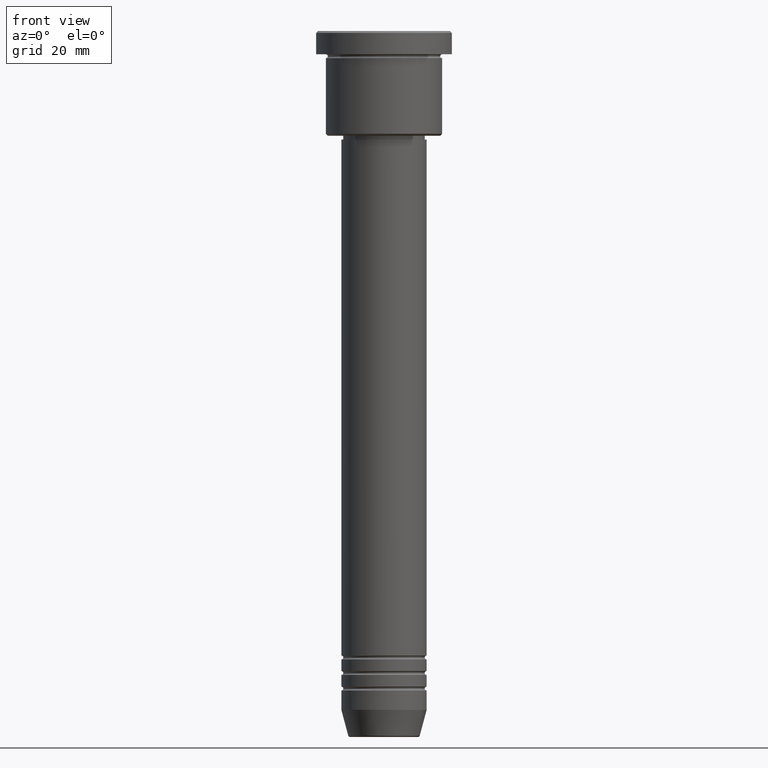
[diagram: clean part render]
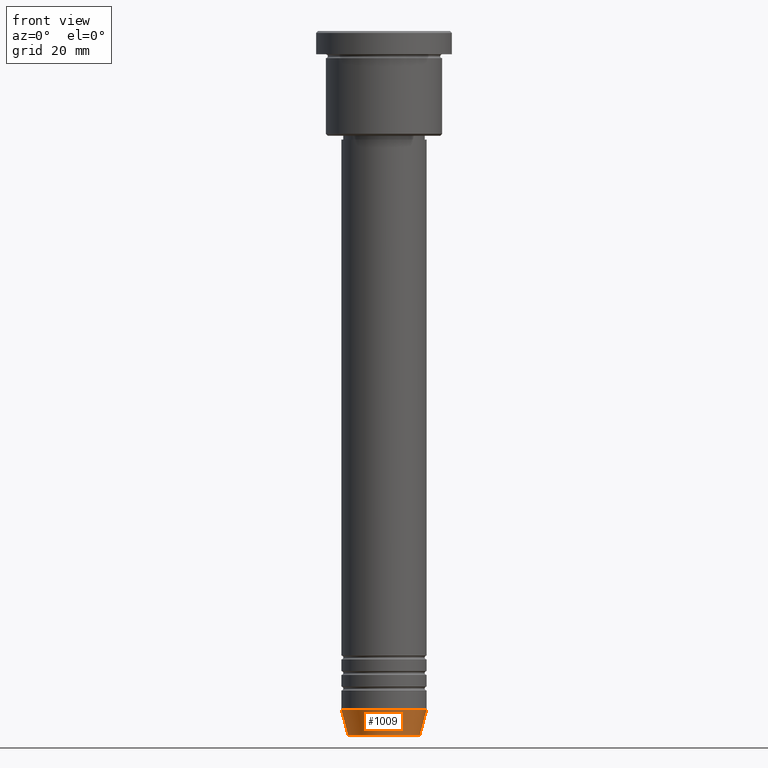
[diagram: same view with one face highlighted and labeled with its STEP entity id]
A machine part, front view. The second image highlights one B-rep face of the part: STEP entity #1009.
In plain terms, the highlighted conical surface has half-angle 15 deg.
Its self-contained STEP definition (entity closure, byte-faithful):
#21 = DIRECTION ( 'NONE',  ( 1.000000000000000000, 0.000000000000000000, 0.000000000000000000 ) ) ;
#33 = EDGE_LOOP ( 'NONE', ( #831, #248, #333, #1101 ) ) ;
#35 = EDGE_CURVE ( 'NONE', #752, #626, #999, .T. ) ;
#104 = CARTESIAN_POINT ( 'NONE',  ( 9.223655072137189492, 0.000000000000000000, -181.6294095225512422 ) ) ;
#107 = CIRCLE ( 'NONE', #786, 9.223655072137189492 ) ;
#173 = CARTESIAN_POINT ( 'NONE',  ( 11.00000000000000000, 0.000000000000000000, -175.0000000000000000 ) ) ;
#248 = ORIENTED_EDGE ( 'NONE', *, *, #989, .T. ) ;
#268 = CARTESIAN_POINT ( 'NONE',  ( -11.00000000000000000, 1.347111479062088405E-15, -175.0000000000000000 ) ) ;
#271 = VERTEX_POINT ( 'NONE', #104 ) ;
#298 = VECTOR ( 'NONE', #945, 1000.000000000000000 ) ;
#328 = DIRECTION ( 'NONE',  ( 0.2588190451025213501, 0.000000000000000000, 0.9659258262890680902 ) ) ;
#333 = ORIENTED_EDGE ( 'NONE', *, *, #961, .T. ) ;
#479 = AXIS2_PLACEMENT_3D ( 'NONE', #593, #952, #21 ) ;
#487 = DIRECTION ( 'NONE',  ( 1.000000000000000000, 0.000000000000000000, 0.000000000000000000 ) ) ;
#502 = DIRECTION ( 'NONE',  ( 1.000000000000000000, 0.000000000000000000, 0.000000000000000000 ) ) ;
#508 = DIRECTION ( 'NONE',  ( -0.000000000000000000, -0.000000000000000000, 1.000000000000000000 ) ) ;
#523 = CONICAL_SURFACE ( 'NONE', #479, 11.00000000000000000, 0.2617993877991500740 ) ;
#532 = CARTESIAN_POINT ( 'NONE',  ( -9.223655072137189492, 1.238341722557647202E-15, -181.6294095225512422 ) ) ;
#583 = VERTEX_POINT ( 'NONE', #532 ) ;
#593 = CARTESIAN_POINT ( 'NONE',  ( 0.000000000000000000, 0.000000000000000000, -175.0000000000000000 ) ) ;
#613 = AXIS2_PLACEMENT_3D ( 'NONE', #953, #508, #502 ) ;
#626 = VERTEX_POINT ( 'NONE', #173 ) ;
#640 = VECTOR ( 'NONE', #328, 1000.000000000000000 ) ;
#681 = LINE ( 'NONE', #1129, #298 ) ;
#752 = VERTEX_POINT ( 'NONE', #268 ) ;
#771 = CARTESIAN_POINT ( 'NONE',  ( 0.000000000000000000, 0.000000000000000000, -181.6294095225512422 ) ) ;
#786 = AXIS2_PLACEMENT_3D ( 'NONE', #771, #867, #487 ) ;
#831 = ORIENTED_EDGE ( 'NONE', *, *, #1093, .F. ) ;
#867 = DIRECTION ( 'NONE',  ( -0.000000000000000000, -0.000000000000000000, 1.000000000000000000 ) ) ;
#928 = FACE_OUTER_BOUND ( 'NONE', #33, .T. ) ;
#945 = DIRECTION ( 'NONE',  ( -0.2588190451025213501, 3.169619151431772337E-17, 0.9659258262890680902 ) ) ;
#952 = DIRECTION ( 'NONE',  ( -0.000000000000000000, -0.000000000000000000, 1.000000000000000000 ) ) ;
#953 = CARTESIAN_POINT ( 'NONE',  ( 0.000000000000000000, 0.000000000000000000, -175.0000000000000000 ) ) ;
#961 = EDGE_CURVE ( 'NONE', #271, #626, #1045, .T. ) ;
#989 = EDGE_CURVE ( 'NONE', #583, #271, #107, .T. ) ;
#999 = CIRCLE ( 'NONE', #613, 11.00000000000000000 ) ;
#1009 = ADVANCED_FACE ( 'NONE', ( #928 ), #523, .T. ) ;
#1045 = LINE ( 'NONE', #1064, #640 ) ;
#1064 = CARTESIAN_POINT ( 'NONE',  ( 11.00000000000000000, 0.000000000000000000, -175.0000000000000000 ) ) ;
#1093 = EDGE_CURVE ( 'NONE', #583, #752, #681, .T. ) ;
#1101 = ORIENTED_EDGE ( 'NONE', *, *, #35, .F. ) ;
#1129 = CARTESIAN_POINT ( 'NONE',  ( -11.00000000000000000, 1.347111479062088405E-15, -175.0000000000000000 ) ) ;